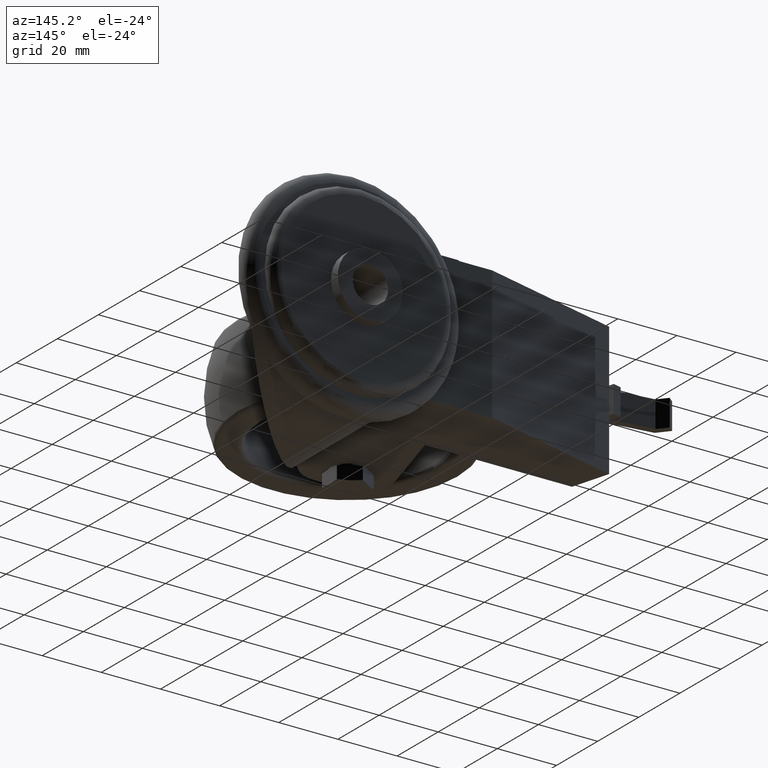
[diagram: clean part render]
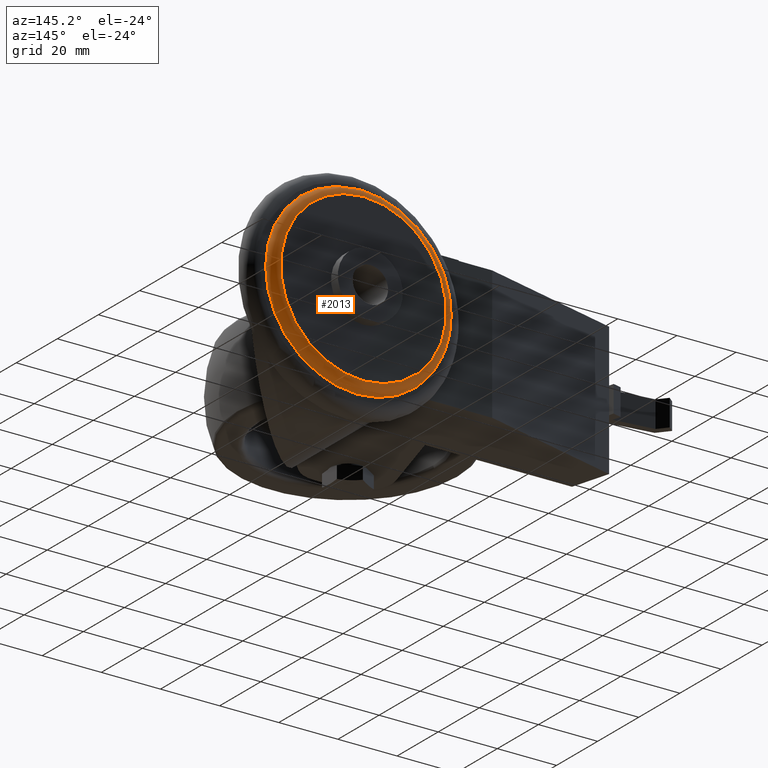
[diagram: same view with one face highlighted and labeled with its STEP entity id]
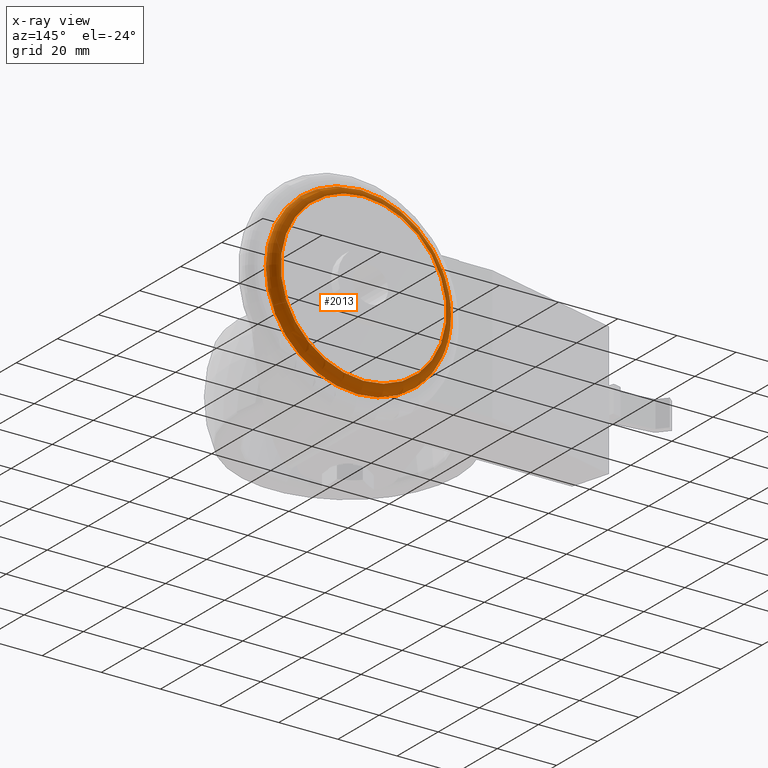
[diagram: x-ray of the same camera — body ghosted, the highlighted face saturated]
A machine part, auxiliary view. The second image highlights one B-rep face of the part: STEP entity #2013.
The next image is the same camera in x-ray: the body ghosted, the highlighted face saturated — about 0% of this face is hidden behind the body in this view.
In plain terms, the highlighted toroidal blend (fillet) surface has major radius 28.025 mm and minor (blend) radius 3 mm.
Its self-contained STEP definition (entity closure, byte-faithful):
#137=TOROIDAL_SURFACE('',#2279,28.025,2.99999999999999);
#257=FACE_OUTER_BOUND('',#392,.T.);
#392=EDGE_LOOP('',(#1513,#1514,#1515,#1516));
#532=CIRCLE('',#2278,28.025);
#533=CIRCLE('',#2280,31.025);
#534=CIRCLE('',#2281,2.99999999999999);
#957=VERTEX_POINT('',#3273);
#958=VERTEX_POINT('',#3276);
#1164=EDGE_CURVE('',#957,#957,#532,.T.);
#1165=EDGE_CURVE('',#958,#958,#533,.T.);
#1166=EDGE_CURVE('',#958,#957,#534,.T.);
#1513=ORIENTED_EDGE('',*,*,#1165,.F.);
#1514=ORIENTED_EDGE('',*,*,#1166,.T.);
#1515=ORIENTED_EDGE('',*,*,#1164,.T.);
#1516=ORIENTED_EDGE('',*,*,#1166,.F.);
#2013=ADVANCED_FACE('',(#257),#137,.T.);
#2278=AXIS2_PLACEMENT_3D('',#3274,#2632,#2633);
#2279=AXIS2_PLACEMENT_3D('',#3275,#2634,#2635);
#2280=AXIS2_PLACEMENT_3D('',#3277,#2636,#2637);
#2281=AXIS2_PLACEMENT_3D('',#3278,#2638,#2639);
#2632=DIRECTION('center_axis',(0.,-1.,0.));
#2633=DIRECTION('ref_axis',(0.,0.,-1.));
#2634=DIRECTION('center_axis',(0.,-1.,0.));
#2635=DIRECTION('ref_axis',(0.,0.,-1.));
#2636=DIRECTION('center_axis',(0.,-1.,0.));
#2637=DIRECTION('ref_axis',(0.,0.,-1.));
#2638=DIRECTION('center_axis',(-1.,0.,-1.43139149025E-16));
#2639=DIRECTION('ref_axis',(-1.43139149025E-16,0.,1.));
#3273=CARTESIAN_POINT('',(39.,63.7,28.025));
#3274=CARTESIAN_POINT('Origin',(39.,63.7,0.));
#3275=CARTESIAN_POINT('Origin',(39.,60.7,0.));
#3276=CARTESIAN_POINT('',(39.,60.7,31.025));
#3277=CARTESIAN_POINT('Origin',(39.,60.7,0.));
#3278=CARTESIAN_POINT('Origin',(39.,60.7,28.025));